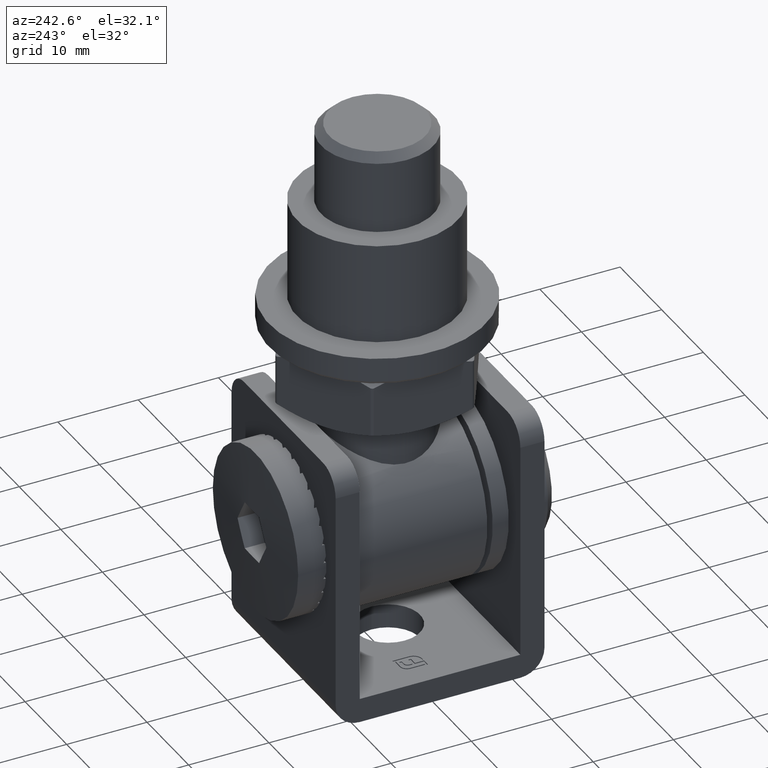
[diagram: clean part render]
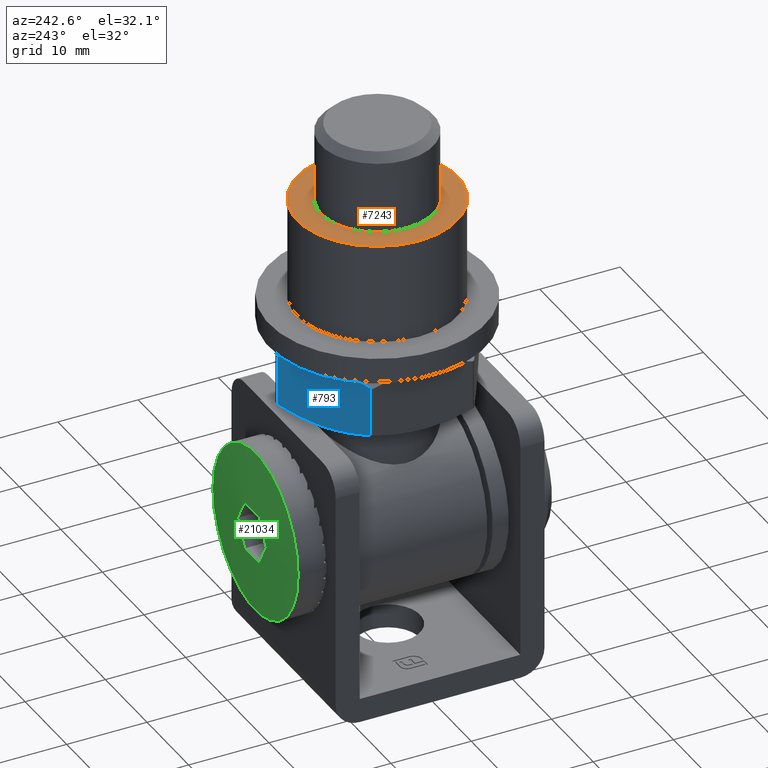
[diagram: same view with three faces highlighted in distinct colors, each labeled with its STEP entity id]
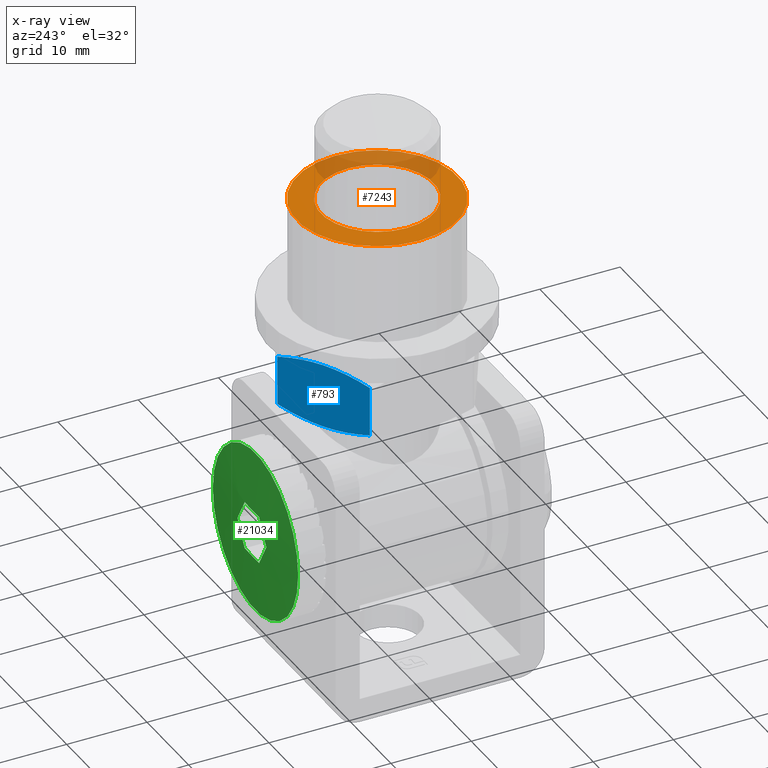
[diagram: x-ray of the same camera — body ghosted, the three highlighted faces saturated]
A machine part, auxiliary view with three faces highlighted in distinct colors.
The next image is the same camera in x-ray (body ghosted, the three faces saturated) — at least one of them is partly hidden behind the body in this view.
Their STEP definitions:

[orange] entity #7243 — the highlighted planar face has unit normal (0, 0, -1).
#230 = DIRECTION ( 'NONE',  ( -1.000000000000000000, 0.000000000000000000, -0.000000000000000000 ) ) ;
#320 = AXIS2_PLACEMENT_3D ( 'NONE', #19794, #10005, #230 ) ;
#1583 = ORIENTED_EDGE ( 'NONE', *, *, #18743, .T. ) ;
#3606 = CARTESIAN_POINT ( 'NONE',  ( -6.999999999999992006, 0.000000000000000000, 8.000000000000007105 ) ) ;
#5658 = DIRECTION ( 'NONE',  ( -1.000000000000000000, 0.000000000000000000, 0.000000000000000000 ) ) ;
#7243 = ADVANCED_FACE ( 'NONE', ( #20160, #9672 ), #16536, .F. ) ;
#8720 = EDGE_CURVE ( 'NONE', #13500, #13500, #9950, .T. ) ;
#8838 = EDGE_LOOP ( 'NONE', ( #1583 ) ) ;
#8860 = DIRECTION ( 'NONE',  ( -0.000000000000000000, -0.000000000000000000, 1.000000000000000000 ) ) ;
#9530 = AXIS2_PLACEMENT_3D ( 'NONE', #20341, #13647, #5658 ) ;
#9672 = FACE_OUTER_BOUND ( 'NONE', #8838, .T. ) ;
#9950 = CIRCLE ( 'NONE', #9530, 6.999999999999992006 ) ;
#10005 = DIRECTION ( 'NONE',  ( 0.000000000000000000, 0.000000000000000000, -1.000000000000000000 ) ) ;
#10501 = CARTESIAN_POINT ( 'NONE',  ( 0.000000000000000000, 0.000000000000000000, 8.000000000000007105 ) ) ;
#13220 = VERTEX_POINT ( 'NONE', #16501 ) ;
#13500 = VERTEX_POINT ( 'NONE', #3606 ) ;
#13647 = DIRECTION ( 'NONE',  ( 0.000000000000000000, 0.000000000000000000, -1.000000000000000000 ) ) ;
#13742 = DIRECTION ( 'NONE',  ( 1.000000000000000000, 0.000000000000000000, 0.000000000000000000 ) ) ;
#15748 = AXIS2_PLACEMENT_3D ( 'NONE', #10501, #8860, #13742 ) ;
#16501 = CARTESIAN_POINT ( 'NONE',  ( 10.00000000000000178, 0.000000000000000000, 8.000000000000007105 ) ) ;
#16536 = PLANE ( 'NONE',  #320 ) ;
#18743 = EDGE_CURVE ( 'NONE', #13220, #13220, #19299, .T. ) ;
#19299 = CIRCLE ( 'NONE', #15748, 10.00000000000000178 ) ;
#19562 = EDGE_LOOP ( 'NONE', ( #20243 ) ) ;
#19794 = CARTESIAN_POINT ( 'NONE',  ( 0.000000000000000000, 4.999999999999999112, 8.000000000000007105 ) ) ;
#20160 = FACE_BOUND ( 'NONE', #19562, .T. ) ;
#20243 = ORIENTED_EDGE ( 'NONE', *, *, #8720, .T. ) ;
#20341 = CARTESIAN_POINT ( 'NONE',  ( 0.000000000000000000, 0.000000000000000000, 8.000000000000007105 ) ) ;

[blue] entity #793 — the highlighted planar face has unit normal (0.5, -0.866, 0).
#325 = CARTESIAN_POINT ( 'NONE',  ( 6.062177826491049970, 3.099416321816862219, -11.00000000000000178 ) ) ;
#793 = ADVANCED_FACE ( 'NONE', ( #1443 ), #11071, .F. ) ;
#831 = CARTESIAN_POINT ( 'NONE',  ( -6.062177826491587318, 3.099416321816719666, -10.99999999999997868 ) ) ;
#978 = CARTESIAN_POINT ( 'NONE',  ( -2.493664996716660198E-15, -4.000000000000003553, -10.99999999999999822 ) ) ;
#1443 = FACE_OUTER_BOUND ( 'NONE', #6579, .T. ) ;
#1594 = VERTEX_POINT ( 'NONE', #831 ) ;
#1877 = CARTESIAN_POINT ( 'NONE',  ( -2.493664996716660198E-15, -4.000000000000003553, -10.99999999999999822 ) ) ;
#2740 = DIRECTION ( 'NONE',  ( -2.220446049250319490E-16, 9.860761315262676032E-32, 1.000000000000000000 ) ) ;
#2745 = CARTESIAN_POINT ( 'NONE',  ( -6.062177826491046417, 3.999999999999989786, -10.99999999999996980 ) ) ;
#2778 = CARTESIAN_POINT ( 'NONE',  ( -4.119968255444916849E-15, 4.000000000000003553, -10.99999999999996625 ) ) ;
#2847 = CARTESIAN_POINT ( 'NONE',  ( -5.073837448075289913, -3.374832786402357510, -10.99999999999997868 ) ) ;
#3342 = LINE ( 'NONE', #2745, #11489 ) ;
#3598 = ORIENTED_EDGE ( 'NONE', *, *, #19558, .T. ) ;
#3730 = VERTEX_POINT ( 'NONE', #12990 ) ;
#4084 = VERTEX_POINT ( 'NONE', #12598 ) ;
#4303 = CARTESIAN_POINT ( 'NONE',  ( -1.023288074114490298, -4.000000000000015987, -10.99999999999997868 ) ) ;
#4379 = EDGE_CURVE ( 'NONE', #19627, #12686, #20978, .T. ) ;
#4479 = DIRECTION ( 'NONE',  ( -7.395570986446985676E-32, 1.000000000000000000, 4.930380657631323784E-32 ) ) ;
#5174 = CARTESIAN_POINT ( 'NONE',  ( -2.040263086851270113, 3.916242761416095508, -10.99999999999997691 ) ) ;
#5227 = CARTESIAN_POINT ( 'NONE',  ( -1.023288074114492519, 4.000000000000019540, -10.99999999999997691 ) ) ;
#6579 = EDGE_LOOP ( 'NONE', ( #8726, #19504, #3598, #11354, #15313, #11421 ) ) ;
#6924 = EDGE_CURVE ( 'NONE', #3730, #19627, #12904, .T. ) ;
#7590 = DIRECTION ( 'NONE',  ( 7.395570986446985676E-32, -1.000000000000000000, -4.930380657631323784E-32 ) ) ;
#8482 = CARTESIAN_POINT ( 'NONE',  ( 2.054933537488202511, 3.896843087584606735, -10.99999999999998224 ) ) ;
#8726 = ORIENTED_EDGE ( 'NONE', *, *, #9838, .T. ) ;
#9119 = CARTESIAN_POINT ( 'NONE',  ( -2.040263086851273222, -3.916242761416092844, -10.99999999999997868 ) ) ;
#9197 = CARTESIAN_POINT ( 'NONE',  ( 6.062177826491057964, -3.099416321816855113, -10.99999999999997335 ) ) ;
#9838 = EDGE_CURVE ( 'NONE', #12686, #10293, #18800, .T. ) ;
#10110 = CARTESIAN_POINT ( 'NONE',  ( 5.080857247689716694, 3.372876609730651065, -10.99999999999997335 ) ) ;
#10263 = CARTESIAN_POINT ( 'NONE',  ( 4.086756432635476166, 3.599310196561053221, -10.99999999999997513 ) ) ;
#10293 = VERTEX_POINT ( 'NONE', #17896 ) ;
#10322 = CARTESIAN_POINT ( 'NONE',  ( -4.063303873143292222, 3.603992205469817023, -10.99999999999997868 ) ) ;
#10946 = DIRECTION ( 'NONE',  ( 1.000000000000000000, -2.465190328815668460E-32, 2.220446049250319490E-16 ) ) ;
#11071 = PLANE ( 'NONE',  #13830 ) ;
#11354 = ORIENTED_EDGE ( 'NONE', *, *, #19482, .T. ) ;
#11421 = ORIENTED_EDGE ( 'NONE', *, *, #4379, .T. ) ;
#11489 = VECTOR ( 'NONE', #4479, 1000.000000000000000 ) ;
#12384 = VECTOR ( 'NONE', #7590, 1000.000000000000000 ) ;
#12426 = CARTESIAN_POINT ( 'NONE',  ( 1.025140995601788285, -3.979278258834074045, -10.99999999999998046 ) ) ;
#12540 = CARTESIAN_POINT ( 'NONE',  ( 6.350852961085866610, 4.000000000000007105, -10.99999999999997513 ) ) ;
#12598 = CARTESIAN_POINT ( 'NONE',  ( -4.119968255444916849E-15, 4.000000000000003553, -10.99999999999996625 ) ) ;
#12686 = VERTEX_POINT ( 'NONE', #1877 ) ;
#12904 = LINE ( 'NONE', #17101, #12384 ) ;
#12990 = CARTESIAN_POINT ( 'NONE',  ( 6.062177826491049970, 3.099416321816862219, -11.00000000000000178 ) ) ;
#13830 = AXIS2_PLACEMENT_3D ( 'NONE', #12540, #2740, #10946 ) ;
#14133 = CARTESIAN_POINT ( 'NONE',  ( -6.062177826491587318, -3.099416321816719666, -10.99999999999997513 ) ) ;
#15185 = CARTESIAN_POINT ( 'NONE',  ( -5.073837448075288137, 3.374832786402361062, -10.99999999999998046 ) ) ;
#15313 = ORIENTED_EDGE ( 'NONE', *, *, #6924, .T. ) ;
#15496 = CARTESIAN_POINT ( 'NONE',  ( 4.086756432635481495, -3.599310196561047448, -10.99999999999997158 ) ) ;
#15641 = CARTESIAN_POINT ( 'NONE',  ( 5.080857247689723799, -3.372876609730646180, -10.99999999999997513 ) ) ;
#15772 = CARTESIAN_POINT ( 'NONE',  ( -4.063303873143297551, -3.603992205469813026, -10.99999999999997691 ) ) ;
#16710 = CARTESIAN_POINT ( 'NONE',  ( 1.025140995601781846, 3.979278258834074933, -10.99999999999997691 ) ) ;
#16785 = CARTESIAN_POINT ( 'NONE',  ( -6.062177826491587318, 3.099416321816719666, -10.99999999999997868 ) ) ;
#17101 = CARTESIAN_POINT ( 'NONE',  ( 6.062177826491052635, 4.000000000000007105, -10.99999999999997335 ) ) ;
#17595 = B_SPLINE_CURVE_WITH_KNOTS ( 'NONE', 3,
 ( #16785, #15185, #10322, #5174, #5227, #2778 ),
 .UNSPECIFIED., .F., .F.,
 ( 4, 2, 4 ),
 ( 0.01162949949021613305, 0.01469252917574804043, 0.01775555886127994781 ),
 .UNSPECIFIED. ) ;
#17896 = CARTESIAN_POINT ( 'NONE',  ( -6.062177826491587318, -3.099416321816719666, -10.99999999999997513 ) ) ;
#18227 = CARTESIAN_POINT ( 'NONE',  ( 2.567457142663057468, 3.835385750404448402, -10.99999999999997691 ) ) ;
#18438 = CARTESIAN_POINT ( 'NONE',  ( 0.5117895645583095954, 4.000000000000021316, -10.99999999999998046 ) ) ;
#18800 = B_SPLINE_CURVE_WITH_KNOTS ( 'NONE', 3,
 ( #978, #4303, #9119, #15772, #2847, #14133 ),
 .UNSPECIFIED., .F., .F.,
 ( 4, 2, 4 ),
 ( 0.01106752553615840233, 0.01412272447472420062, 0.01717792341328999717 ),
 .UNSPECIFIED. ) ;
#18980 = CARTESIAN_POINT ( 'NONE',  ( 2.567457142663063685, -3.835385750404443961, -10.99999999999997691 ) ) ;
#19482 = EDGE_CURVE ( 'NONE', #4084, #3730, #20874, .T. ) ;
#19487 = CARTESIAN_POINT ( 'NONE',  ( -4.119968255444916849E-15, 4.000000000000003553, -10.99999999999996625 ) ) ;
#19504 = ORIENTED_EDGE ( 'NONE', *, *, #20215, .T. ) ;
#19558 = EDGE_CURVE ( 'NONE', #1594, #4084, #17595, .T. ) ;
#19627 = VERTEX_POINT ( 'NONE', #9197 ) ;
#20215 = EDGE_CURVE ( 'NONE', #10293, #1594, #3342, .T. ) ;
#20427 = CARTESIAN_POINT ( 'NONE',  ( -2.493664996716660198E-15, -4.000000000000003553, -10.99999999999999822 ) ) ;
#20489 = CARTESIAN_POINT ( 'NONE',  ( 6.062177826491057964, -3.099416321816855113, -10.99999999999997335 ) ) ;
#20547 = CARTESIAN_POINT ( 'NONE',  ( 2.054933537488211392, -3.896843087584601406, -10.99999999999997691 ) ) ;
#20638 = CARTESIAN_POINT ( 'NONE',  ( 0.5117895645583140363, -4.000000000000017764, -10.99999999999997691 ) ) ;
#20874 = B_SPLINE_CURVE_WITH_KNOTS ( 'NONE', 3,
 ( #19487, #18438, #16710, #8482, #18227, #10263, #10110, #325 ),
 .UNSPECIFIED., .F., .F.,
 ( 4, 2, 2, 4 ),
 ( 0.01775555886127994781, 0.01928750931457154025, 0.02081945976786312921, 0.02388336067444631061 ),
 .UNSPECIFIED. ) ;
#20978 = B_SPLINE_CURVE_WITH_KNOTS ( 'NONE', 3,
 ( #20489, #15641, #15496, #18980, #20547, #12426, #20638, #20427 ),
 .UNSPECIFIED., .F., .F.,
 ( 4, 2, 2, 4 ),
 ( 0.004955389671540956671, 0.008011457603849679934, 0.009539491570004041132, 0.01106752553615840233 ),
 .UNSPECIFIED. ) ;

[green] entity #21034 — the highlighted spherical surface has radius 105.312 mm.
#412 = ORIENTED_EDGE ( 'NONE', *, *, #12915, .F. ) ;
#948 = CARTESIAN_POINT ( 'NONE',  ( 3.464101615137757495, 18.94301128682049296, -1.084202172485504434E-15 ) ) ;
#964 = VERTEX_POINT ( 'NONE', #13374 ) ;
#1693 = EDGE_CURVE ( 'NONE', #11146, #10257, #11616, .T. ) ;
#2703 = EDGE_CURVE ( 'NONE', #4106, #964, #12362, .T. ) ;
#2889 = CARTESIAN_POINT ( 'NONE',  ( 1.732050807568879858, 18.94301128682049296, 3.000000000000000888 ) ) ;
#3532 = AXIS2_PLACEMENT_3D ( 'NONE', #20260, #4100, #13906 ) ;
#4005 = ORIENTED_EDGE ( 'NONE', *, *, #5316, .F. ) ;
#4100 = DIRECTION ( 'NONE',  ( 1.251928832280966435E-16, 0.000000000000000000, 1.000000000000000000 ) ) ;
#4106 = VERTEX_POINT ( 'NONE', #948 ) ;
#4220 = CARTESIAN_POINT ( 'NONE',  ( -1.732050807568874307, 18.94301128682049296, -2.999999999999998668 ) ) ;
#5091 = VERTEX_POINT ( 'NONE', #7184 ) ;
#5316 = EDGE_CURVE ( 'NONE', #10257, #4106, #17823, .T. ) ;
#5433 = CARTESIAN_POINT ( 'NONE',  ( 2.316217725939337712E-15, 18.49999999999998934, 0.000000000000000000 ) ) ;
#6008 = EDGE_LOOP ( 'NONE', ( #14439, #4005, #15503, #12611, #9658, #20606 ) ) ;
#6460 = AXIS2_PLACEMENT_3D ( 'NONE', #18954, #9173, #17736 ) ;
#7184 = CARTESIAN_POINT ( 'NONE',  ( -3.464101615137752166, 18.94301128682049296, 4.336808689942017736E-16 ) ) ;
#7445 = CARTESIAN_POINT ( 'NONE',  ( 2.598076211353320453, -86.31250000000021316, -1.499999999999995781 ) ) ;
#7475 = CARTESIAN_POINT ( 'NONE',  ( 1.404957346741441077E-14, -86.31250000000021316, 0.000000000000000000 ) ) ;
#7837 = EDGE_CURVE ( 'NONE', #964, #20980, #11488, .T. ) ;
#8435 = AXIS2_PLACEMENT_3D ( 'NONE', #5433, #16962, #18481 ) ;
#8877 = FACE_OUTER_BOUND ( 'NONE', #6008, .T. ) ;
#9071 = DIRECTION ( 'NONE',  ( -0.5000000000000002220, -6.301508131676953390E-14, -0.8660254037844384856 ) ) ;
#9173 = DIRECTION ( 'NONE',  ( 0.8660254037844387076, -0.000000000000000000, -0.5000000000000002220 ) ) ;
#9196 = AXIS2_PLACEMENT_3D ( 'NONE', #15990, #12790, #9332 ) ;
#9221 = DIRECTION ( 'NONE',  ( -0.8660254037844387076, -0.000000000000000000, 0.5000000000000003331 ) ) ;
#9332 = DIRECTION ( 'NONE',  ( 1.000000000000000000, -6.301508131676955914E-14, 0.000000000000000000 ) ) ;
#9658 = ORIENTED_EDGE ( 'NONE', *, *, #9721, .F. ) ;
#9721 = EDGE_CURVE ( 'NONE', #20980, #5091, #20666, .T. ) ;
#10145 = FACE_OUTER_BOUND ( 'NONE', #19318, .T. ) ;
#10257 = VERTEX_POINT ( 'NONE', #2889 ) ;
#10811 = DIRECTION ( 'NONE',  ( -0.5000000000000001110, -6.301508131676954652E-14, 0.8660254037844385966 ) ) ;
#11146 = VERTEX_POINT ( 'NONE', #21194 ) ;
#11488 = CIRCLE ( 'NONE', #3532, 105.2697613574289477 ) ;
#11616 = CIRCLE ( 'NONE', #9196, 105.2697613574289477 ) ;
#12325 = AXIS2_PLACEMENT_3D ( 'NONE', #7445, #9221, #9071 ) ;
#12362 = CIRCLE ( 'NONE', #12325, 105.2697613574289761 ) ;
#12558 = DIRECTION ( 'NONE',  ( -0.000000000000000000, 0.000000000000000000, 1.000000000000000000 ) ) ;
#12611 = ORIENTED_EDGE ( 'NONE', *, *, #20240, .F. ) ;
#12790 = DIRECTION ( 'NONE',  ( 0.000000000000000000, -0.000000000000000000, -1.000000000000000000 ) ) ;
#12797 = AXIS2_PLACEMENT_3D ( 'NONE', #19125, #18917, #10811 ) ;
#12915 = EDGE_CURVE ( 'NONE', #16031, #16031, #19734, .T. ) ;
#13290 = CIRCLE ( 'NONE', #6460, 105.2697613574289761 ) ;
#13322 = AXIS2_PLACEMENT_3D ( 'NONE', #7475, #12558, #20477 ) ;
#13374 = CARTESIAN_POINT ( 'NONE',  ( 1.732050807568878970, 18.94301128682049296, -3.000000000000000000 ) ) ;
#13906 = DIRECTION ( 'NONE',  ( -1.000000000000000000, -6.301508131676955914E-14, 1.235912944235804618E-16 ) ) ;
#13945 = CARTESIAN_POINT ( 'NONE',  ( 2.598076211353321341, -86.31250000000021316, 1.499999999999994449 ) ) ;
#14439 = ORIENTED_EDGE ( 'NONE', *, *, #2703, .F. ) ;
#14510 = SPHERICAL_SURFACE ( 'NONE', #13322, 105.3125000000001990 ) ;
#15305 = DIRECTION ( 'NONE',  ( -0.8660254037844388186, -0.000000000000000000, -0.4999999999999998890 ) ) ;
#15503 = ORIENTED_EDGE ( 'NONE', *, *, #1693, .F. ) ;
#15990 = CARTESIAN_POINT ( 'NONE',  ( 1.404957346741441077E-14, -86.31250000000021316, 3.000000000000000000 ) ) ;
#16031 = VERTEX_POINT ( 'NONE', #18296 ) ;
#16962 = DIRECTION ( 'NONE',  ( -1.252009581588831962E-16, -1.000000000000000000, -0.000000000000000000 ) ) ;
#17736 = DIRECTION ( 'NONE',  ( 0.5000000000000001110, -6.301508131676953390E-14, 0.8660254037844384856 ) ) ;
#17799 = DIRECTION ( 'NONE',  ( 0.4999999999999997780, -6.301508131676954652E-14, -0.8660254037844387076 ) ) ;
#17823 = CIRCLE ( 'NONE', #20573, 105.2697613574289619 ) ;
#18296 = CARTESIAN_POINT ( 'NONE',  ( 10.25000000000000178, 18.49999999999998934, 0.000000000000000000 ) ) ;
#18481 = DIRECTION ( 'NONE',  ( 1.000000000000000000, 0.000000000000000000, 0.000000000000000000 ) ) ;
#18917 = DIRECTION ( 'NONE',  ( 0.8660254037844387076, 0.000000000000000000, 0.5000000000000001110 ) ) ;
#18954 = CARTESIAN_POINT ( 'NONE',  ( -2.598076211353310239, -86.31250000000021316, 1.500000000000005773 ) ) ;
#19125 = CARTESIAN_POINT ( 'NONE',  ( -2.598076211353309795, -86.31250000000021316, -1.500000000000004885 ) ) ;
#19318 = EDGE_LOOP ( 'NONE', ( #412 ) ) ;
#19734 = CIRCLE ( 'NONE', #8435, 10.25000000000000000 ) ;
#20240 = EDGE_CURVE ( 'NONE', #5091, #11146, #13290, .T. ) ;
#20260 = CARTESIAN_POINT ( 'NONE',  ( 1.367399481773012244E-14, -86.31250000000021316, -3.000000000000000000 ) ) ;
#20477 = DIRECTION ( 'NONE',  ( 1.000000000000000000, -1.317772136053595696E-16, 0.000000000000000000 ) ) ;
#20573 = AXIS2_PLACEMENT_3D ( 'NONE', #13945, #15305, #17799 ) ;
#20606 = ORIENTED_EDGE ( 'NONE', *, *, #7837, .F. ) ;
#20666 = CIRCLE ( 'NONE', #12797, 105.2697613574289619 ) ;
#20980 = VERTEX_POINT ( 'NONE', #4220 ) ;
#21034 = ADVANCED_FACE ( 'NONE', ( #8877, #10145 ), #14510, .T. ) ;
#21194 = CARTESIAN_POINT ( 'NONE',  ( -1.732050807568874529, 18.94301128682049296, 3.000000000000000000 ) ) ;